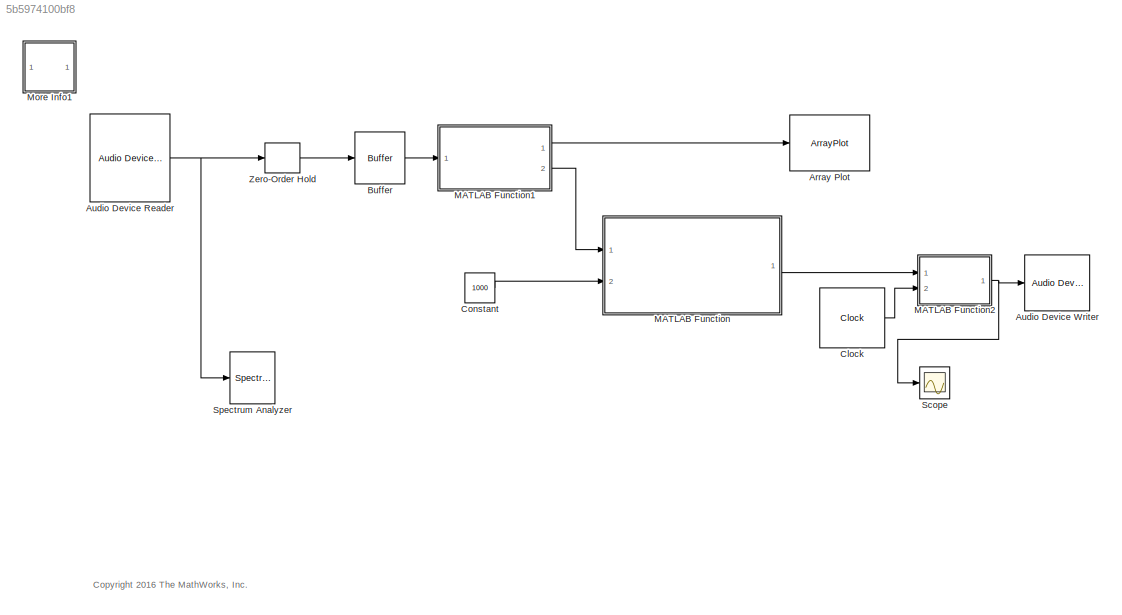
MODEL slx_5b5974100bf8
KIND model
CONFIG AbsTol = auto
CONFIG EnableMultiTasking = off
CONFIG FixedStep = auto
CONFIG MaxStep = auto
CONFIG MinStep = auto
CONFIG RelTol = 1e-3
CONFIG SampleTimeConstraint = Unconstrained
CONFIG Solver = FixedStepDiscrete
CONFIG SolverName = FixedStepDiscrete
CONFIG StartTime = 0.0
CONFIG StopTime = inf
BLOCK [ArrayPlot] Array Plot
  Ports = [1]
  ScopeSpecificationString = dsp.scopes.ArrayPlotBlockSpecification('CurrentConfiguration', extmgr.ConfigurationSet(extmgr.Configuration('Core','General UI',true),extmgr.Configuration('Core','Source UI',true),extmgr.Configuration('Sources','WiredSimulink',true),extmgr.Configuration('Sources','SimulinkEvent',false),extmgr.Configuration('Sources','Simulink',false),extmgr.Configuration('Sources','SPTool',false),extmgr.Configurat...<+2636ch>
BLOCK [Reference] Audio Device Reader  REF=audiosources/Audio Device
Reader
  Ports = [0, 1]
  SourceBlock = audiosources/Audio Device\nReader
  SourceProductBaseCode = AU
  SourceProductName = Audio Toolbox
  SourceType = Audio Device Reader
BLOCK [Reference] Audio Device Writer  REF=dspsnks4/Audio Device
Writer
  Ports = [1]
  SourceBlock = dspsnks4/Audio Device\nWriter
  SourceProductBaseCode = DS
  SourceProductName = DSP System Toolbox
  SourceType = Audio Device Writer
BLOCK [Buffer] Buffer
  N = 1024
  OutputFrames = off
BLOCK [Clock] Clock
  DisplayTime = on
BLOCK [Constant] Constant
  Value = 1000
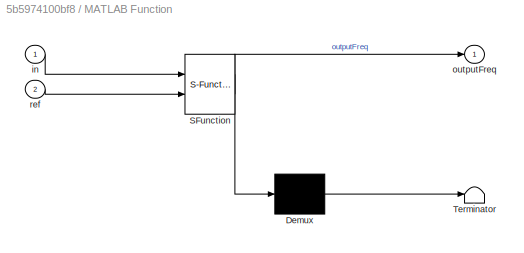
BLOCK [SubSystem] MATLAB Function
  ErrorFcn = Stateflow.Translate.translate
  PermitHierarchicalResolution = ExplicitOnly
  Ports = [2, 1]
  RequestExecContextInheritance = off
  SFBlockType = MATLAB Function
  TreatAsAtomicUnit = on
BLOCK [Demux] MATLAB Function/ Demux 
  Outputs = 1
  Ports = [1, 1]
BLOCK [S-Function] MATLAB Function/ SFunction 
  EnableBusSupport = on
  FunctionName = sf_sfun
  PortCounts = [2 2]
  Ports = [2, 2]
  SFcnIsStateOwnerBlock = off
  SFunctionDeploymentMode = off
  Tag = Stateflow S-Function 2
BLOCK [Terminator] MATLAB Function/ Terminator 
BLOCK [Inport] MATLAB Function/in
  IconDisplay = Port number
BLOCK [Outport] MATLAB Function/outputFreq
  IconDisplay = Port number
BLOCK [Inport] MATLAB Function/ref
  IconDisplay = Port number
  Port = 2
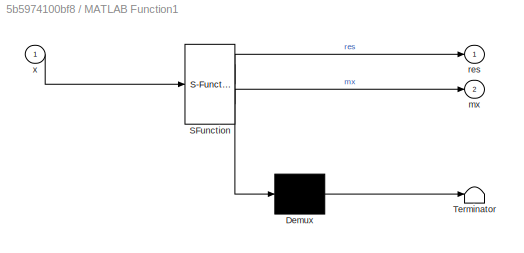
BLOCK [SubSystem] MATLAB Function1
  ErrorFcn = Stateflow.Translate.translate
  PermitHierarchicalResolution = ExplicitOnly
  Ports = [1, 2]
  RequestExecContextInheritance = off
  SFBlockType = MATLAB Function
  TreatAsAtomicUnit = on
BLOCK [Demux] MATLAB Function1/ Demux 
  Outputs = 1
  Ports = [1, 1]
BLOCK [S-Function] MATLAB Function1/ SFunction 
  EnableBusSupport = on
  FunctionName = sf_sfun
  PortCounts = [1 3]
  Ports = [1, 3]
  SFcnIsStateOwnerBlock = off
  SFunctionDeploymentMode = off
  Tag = Stateflow S-Function 1
BLOCK [Terminator] MATLAB Function1/ Terminator 
BLOCK [Outport] MATLAB Function1/mx
  IconDisplay = Port number
  Port = 2
BLOCK [Outport] MATLAB Function1/res
  IconDisplay = Port number
BLOCK [Inport] MATLAB Function1/x
  IconDisplay = Port number
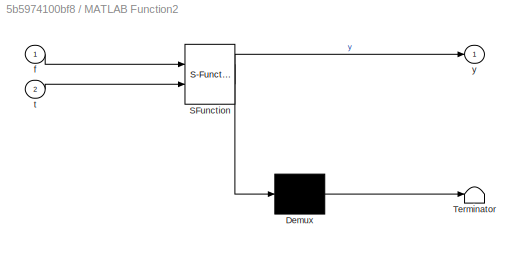
BLOCK [SubSystem] MATLAB Function2
  ErrorFcn = Stateflow.Translate.translate
  PermitHierarchicalResolution = ExplicitOnly
  Ports = [2, 1]
  RequestExecContextInheritance = off
  SFBlockType = MATLAB Function
  TreatAsAtomicUnit = on
BLOCK [Demux] MATLAB Function2/ Demux 
  Outputs = 1
  Ports = [1, 1]
BLOCK [S-Function] MATLAB Function2/ SFunction 
  EnableBusSupport = on
  FunctionName = sf_sfun
  PortCounts = [2 2]
  Ports = [2, 2]
  SFcnIsStateOwnerBlock = off
  SFunctionDeploymentMode = off
  Tag = Stateflow S-Function 3
BLOCK [Terminator] MATLAB Function2/ Terminator 
BLOCK [Inport] MATLAB Function2/f
  IconDisplay = Port number
BLOCK [Inport] MATLAB Function2/t
  IconDisplay = Port number
  Port = 2
BLOCK [Outport] MATLAB Function2/y
  IconDisplay = Port number
BLOCK [SubSystem] More Info1
  OpenFcn = web(fullfile(docroot, 'audio/ref/audiodevicereader.html'))
  Ports = []
  RequestExecContextInheritance = off
BLOCK [Scope] Scope
  Floating = off
  NumInputPorts = 1
  Ports = [1]
  ScopeSpecificationString = Simulink.scopes.TimeScopeBlockCfg('CurrentConfiguration', extmgr.ConfigurationSet(extmgr.Configuration('Core','General UI',true),extmgr.Configuration('Core','Source UI',true),extmgr.Configuration('Sources','WiredSimulink',true),extmgr.Configuration('Visuals','Time Domain',true,'SerializedDisplays',{struct('MinYLimReal','-6.24406','MaxYLimReal','6.19654','YLabelReal','','MinYLimMag','0.00000','MaxY...<+1384ch>
BLOCK [SpectrumAnalyzer] Spectrum Analyzer
  Commented = on
  Ports = [1]
  ScopeSpecificationString = spbscopes.SpectrumAnalyzerBlockCfg('CurrentConfiguration', extmgr.ConfigurationSet(extmgr.Configuration('Core','General UI',true),extmgr.Configuration('Core','Source UI',true),extmgr.Configuration('Sources','WiredSimulink',true),extmgr.Configuration('Visuals','Spectrum',true,'AxesProperties',struct('Color',{[0 0 0],[0 0 0]},'XColor',{[0.686274509803922 0.686274509803922 0.686274509803922],[0.68627...<+2016ch>
BLOCK [ZeroOrderHold] Zero-Order Hold
  SampleTime = -1
ANNOTATION (root): <copyright redacted>
NET Audio Device Reader:1 -> Spectrum Analyzer:1, Zero-Order Hold:1
LINE Buffer:1 -> MATLAB Function1:1
LINE Clock:1 -> MATLAB Function2:2
LINE Constant:1 -> MATLAB Function:2
LINE MATLAB Function1:1 -> Array Plot:1
LINE MATLAB Function1:2 -> MATLAB Function:1
NET MATLAB Function2:1 -> Audio Device Writer:1, Scope:1
LINE MATLAB Function:1 -> MATLAB Function2:1
LINE Zero-Order Hold:1 -> Buffer:1
note: NET lines group one-source signal fan-out (src -> all destinations, sorted); 1:1 wires keep LINE
CHART MATLAB Function1 states=1 transitions=1
  STATE_LABEL 'eML_blk_kernel()'
  STATE_LABEL "SCRIPT:\nfunction [res,mx ] = fcn(x)\nFs = 96000;\nxdft = fft(x);\nfftabs = abs(xdft(1:length(x)/2+1));\nfreq = 0:Fs/length(x):(Fs/2);\n[~,maxindex] = max(fftabs);\nmx = freq(maxindex);\nres = fftabs;\nmx = mx/2;\nfprintf('The maximum occurs at %2.1f Hz\\n',mx );\nend"
CHART MATLAB Function states=1 transitions=1
  STATE_LABEL 'eML_blk_kernel()'
  STATE_LABEL 'SCRIPT:\nfunction outputFreq = fcn(in,ref)\nmargin = 0;\nif (in > ref + margin)\n    outputFreq = 50;\nelse\n    outputFreq = 0;\n    \n% elseif (in < ref - margin)\n%     outputFreq = 350;\n% else\n%     outputFreq = 200;\n% end\n\nend\n'
CHART MATLAB Function2 states=1 transitions=1
  STATE_LABEL 'eML_blk_kernel()'
  STATE_LABEL 'SCRIPT:\nfunction y = fcn(f,t)\nA = 5;\ny = A*sin(f*t);\n'
